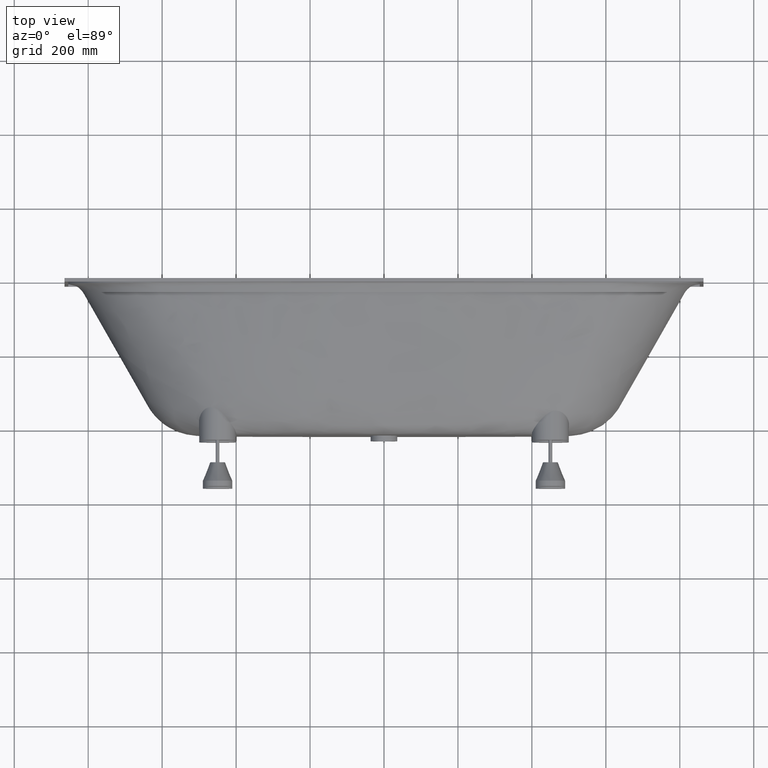
[diagram: clean part render]
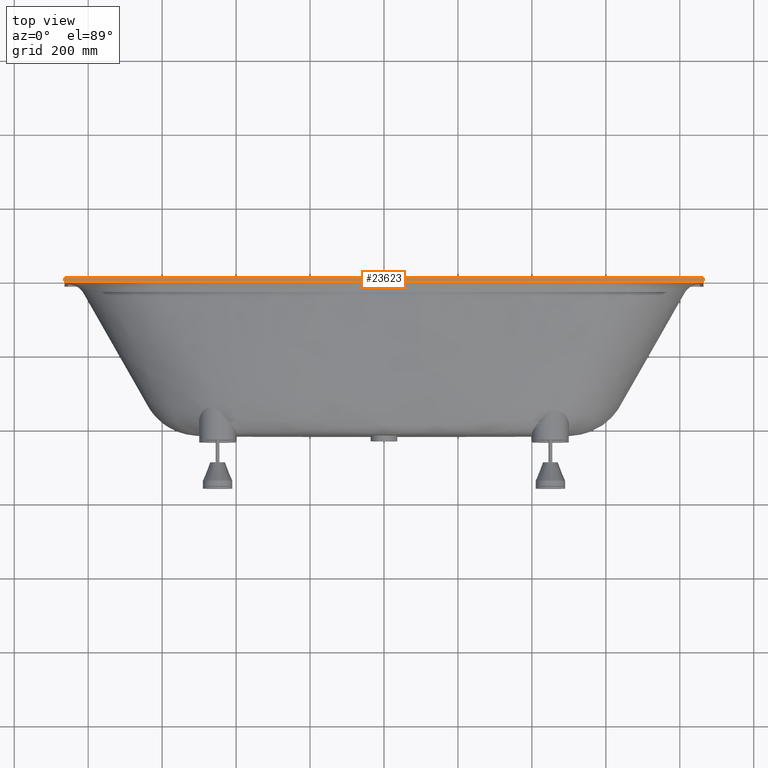
[diagram: same view with one face highlighted and labeled with its STEP entity id]
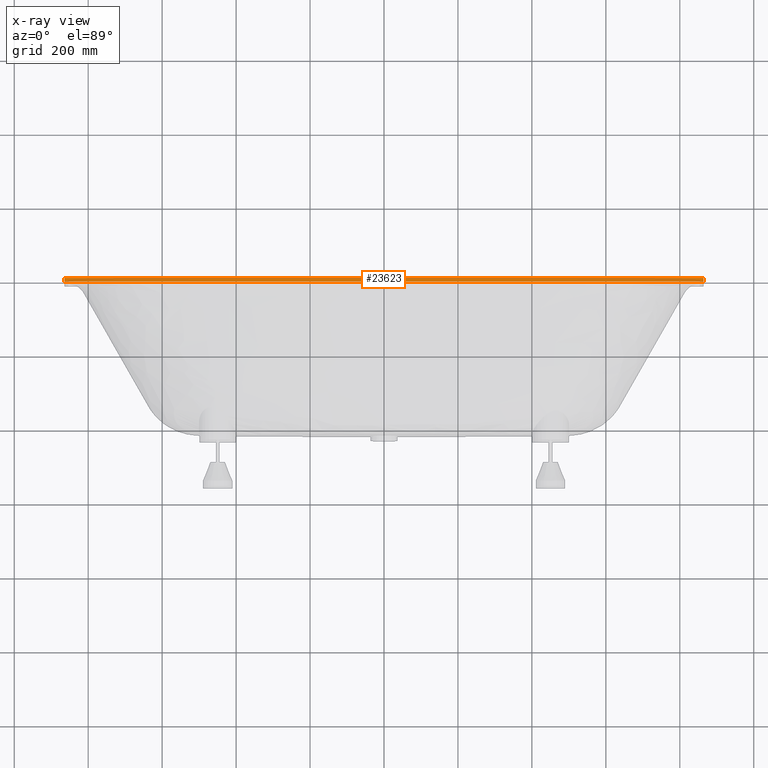
[diagram: x-ray of the same camera — body ghosted, the highlighted face saturated]
A machine part, top view. The second image highlights one B-rep face of the part: STEP entity #23623.
The next image is the same camera in x-ray: the body ghosted, the highlighted face saturated — about 0% of this face is hidden behind the body in this view.
In plain terms, the highlighted planar face has unit normal (0, -0, 1).
Its self-contained STEP definition (entity closure, byte-faithful):
#3620 = CARTESIAN_POINT ( 'NONE',  ( 863.9999999999994316, 0.0000000000000000000, 391.4972507421642263 ) ) ;
#10924 = LINE ( 'NONE', #49305, #119413 ) ;
#11864 = LINE ( 'NONE', #50245, #85103 ) ;
#16008 = CARTESIAN_POINT ( 'NONE',  ( -863.9999999999996589, 0.0000000000000000000, 391.4972507421642263 ) ) ;
#16372 = ORIENTED_EDGE ( 'NONE', *, *, #28152, .F. ) ;
#19080 = LINE ( 'NONE', #57461, #113979 ) ;
#19285 = LINE ( 'NONE', #57668, #77184 ) ;
#19491 = DIRECTION ( 'NONE',  ( 1.000000000000000000, 0.0000000000000000000, -0.0000000000000000000 ) ) ;
#23623 = ADVANCED_FACE ( 'NONE', ( #115136 ), #28920, .T. ) ;
#26547 = ORIENTED_EDGE ( 'NONE', *, *, #123223, .F. ) ;
#28152 = EDGE_CURVE ( 'NONE', #108148, #50192, #11864, .T. ) ;
#28285 = ORIENTED_EDGE ( 'NONE', *, *, #68674, .T. ) ;
#28920 = PLANE ( 'NONE',  #83034 ) ;
#44942 = CARTESIAN_POINT ( 'NONE',  ( 863.9999999999994316, -10.00000000000000000, 391.4972507421642263 ) ) ;
#45311 = ORIENTED_EDGE ( 'NONE', *, *, #76591, .T. ) ;
#49305 = CARTESIAN_POINT ( 'NONE',  ( 863.9999999999994316, -10.00000000000000000, 391.4972507421642263 ) ) ;
#50192 = VERTEX_POINT ( 'NONE', #3620 ) ;
#50245 = CARTESIAN_POINT ( 'NONE',  ( 863.9999999999994316, 0.0000000000000000000, 391.4972507421642263 ) ) ;
#57461 = CARTESIAN_POINT ( 'NONE',  ( -863.9999999999996589, -10.00000000000000000, 391.4972507421642263 ) ) ;
#57668 = CARTESIAN_POINT ( 'NONE',  ( 863.9999999999994316, -10.00000000000000000, 391.4972507421642263 ) ) ;
#67305 = CARTESIAN_POINT ( 'NONE',  ( 863.9999999999994316, -10.00000000000000000, 391.4972507421642263 ) ) ;
#68674 = EDGE_CURVE ( 'NONE', #97410, #108774, #19285, .T. ) ;
#76591 = EDGE_CURVE ( 'NONE', #108774, #50192, #10924, .T. ) ;
#77184 = VECTOR ( 'NONE', #96052, 1000.000000000000000 ) ;
#83034 = AXIS2_PLACEMENT_3D ( 'NONE', #67305, #105697, #19491 ) ;
#85103 = VECTOR ( 'NONE', #88631, 1000.000000000000000 ) ;
#87693 = DIRECTION ( 'NONE',  ( 0.0000000000000000000, 1.000000000000000000, 0.0000000000000000000 ) ) ;
#88631 = DIRECTION ( 'NONE',  ( 1.000000000000000000, -0.0000000000000000000, -0.0000000000000000000 ) ) ;
#95847 = DIRECTION ( 'NONE',  ( 0.0000000000000000000, 1.000000000000000000, 0.0000000000000000000 ) ) ;
#96052 = DIRECTION ( 'NONE',  ( 1.000000000000000000, -0.0000000000000000000, -0.0000000000000000000 ) ) ;
#97410 = VERTEX_POINT ( 'NONE', #121153 ) ;
#102428 = EDGE_LOOP ( 'NONE', ( #16372, #26547, #28285, #45311 ) ) ;
#105697 = DIRECTION ( 'NONE',  ( 0.0000000000000000000, -0.0000000000000000000, 1.000000000000000000 ) ) ;
#108148 = VERTEX_POINT ( 'NONE', #16008 ) ;
#108774 = VERTEX_POINT ( 'NONE', #44942 ) ;
#113979 = VECTOR ( 'NONE', #95847, 1000.000000000000000 ) ;
#115136 = FACE_OUTER_BOUND ( 'NONE', #102428, .T. ) ;
#119413 = VECTOR ( 'NONE', #87693, 1000.000000000000000 ) ;
#121153 = CARTESIAN_POINT ( 'NONE',  ( -863.9999999999996589, -10.00000000000000000, 391.4972507421642263 ) ) ;
#123223 = EDGE_CURVE ( 'NONE', #97410, #108148, #19080, .T. ) ;